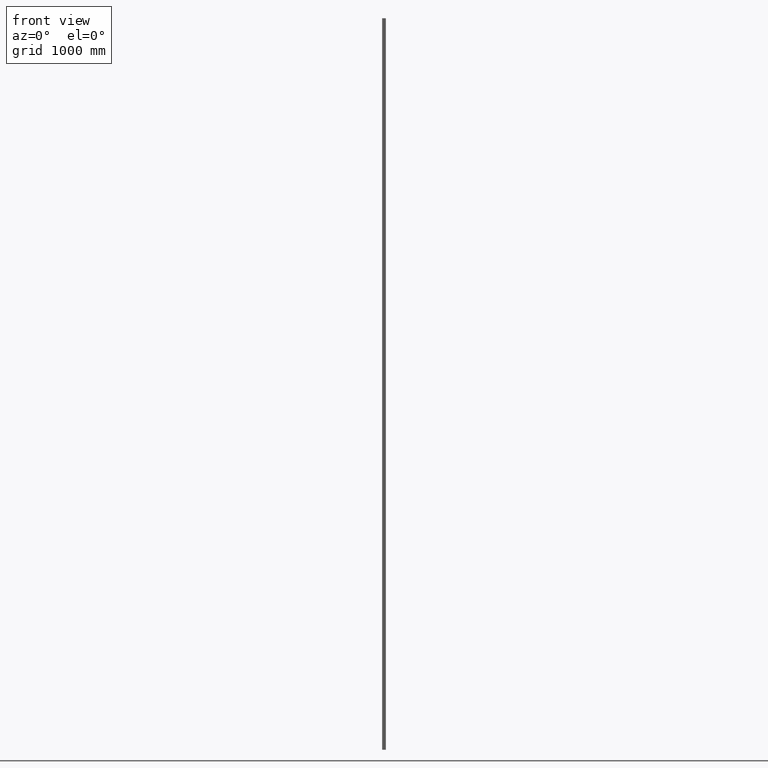
[diagram: clean part render]
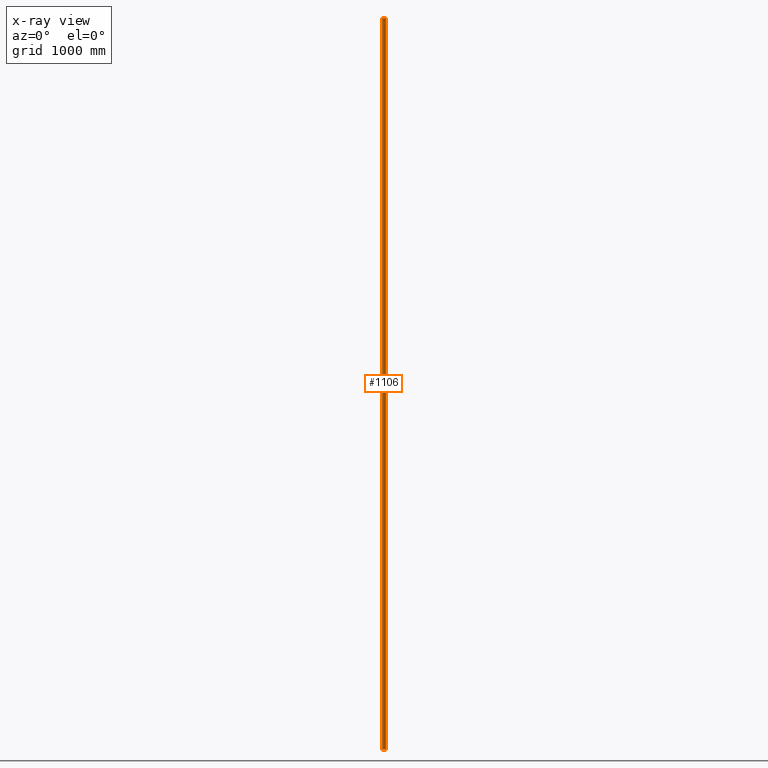
[diagram: x-ray — body ghosted, one internal face saturated and labeled with its STEP entity id]
A machine part, front view, then the same camera in x-ray: the body is ghosted and one INTERNAL B-rep face — a face not visible from any outside direction — is saturated and labeled: STEP entity #1106.
In plain terms, the highlighted cylindrical surface (edge-blend (fillet) strip) has radius 30.0015 mm, axis along (0, 0, 1).
Its self-contained STEP definition (entity closure, byte-faithful):
#35 = CIRCLE ( 'NONE', #1031, 30.00149993100000100 ) ;
#48 = FACE_OUTER_BOUND ( 'NONE', #801, .T. ) ;
#49 = CYLINDRICAL_SURFACE ( 'NONE', #670, 30.00149993100000100 ) ;
#146 = LINE ( 'NONE', #1003, #189 ) ;
#147 = VERTEX_POINT ( 'NONE', #1001 ) ;
#189 = VECTOR ( 'NONE', #1004, 1000.000000000000000 ) ;
#190 = LINE ( 'NONE', #1005, #191 ) ;
#191 = VECTOR ( 'NONE', #1006, 1000.000000000000000 ) ;
#215 = CIRCLE ( 'NONE', #1040, 30.00149993100000100 ) ;
#268 = EDGE_CURVE ( 'NONE', #1150, #1168, #146, .T. ) ;
#269 = EDGE_CURVE ( 'NONE', #147, #1164, #190, .T. ) ;
#281 = EDGE_CURVE ( 'NONE', #1150, #1164, #215, .T. ) ;
#346 = CARTESIAN_POINT ( 'NONE',  ( -15.00000000000000000, -15.00000003300000100, -6000.000000000000000 ) ) ;
#347 = DIRECTION ( 'NONE',  ( 0.0000000000000000000, 0.0000000000000000000, 1.000000000000000000 ) ) ;
#348 = DIRECTION ( 'NONE',  ( 1.000000000000000000, 0.0000000000000000000, 0.0000000000000000000 ) ) ;
#386 = CARTESIAN_POINT ( 'NONE',  ( -15.00000000000000000, -15.00000003300000100, 0.0000000000000000000 ) ) ;
#387 = DIRECTION ( 'NONE',  ( 0.0000000000000000000, 0.0000000000000000000, 1.000000000000000000 ) ) ;
#388 = DIRECTION ( 'NONE',  ( 1.000000000000000000, 0.0000000000000000000, 0.0000000000000000000 ) ) ;
#438 = CARTESIAN_POINT ( 'NONE',  ( -15.00000000000000000, 15.00149989799999900, -6000.000000000000000 ) ) ;
#442 = CARTESIAN_POINT ( 'NONE',  ( 15.00149993100000100, -15.00000001650000000, 0.0000000000000000000 ) ) ;
#604 = CARTESIAN_POINT ( 'NONE',  ( 15.00149993100000100, -15.00000001650000000, -6000.000000000000000 ) ) ;
#670 = AXIS2_PLACEMENT_3D ( 'NONE', #346, #347, #348 ) ;
#733 = CARTESIAN_POINT ( 'NONE',  ( -15.00000000000000000, -15.00000003300000100, -6000.000000000000000 ) ) ;
#734 = DIRECTION ( 'NONE',  ( 0.0000000000000000000, 0.0000000000000000000, 1.000000000000000000 ) ) ;
#735 = DIRECTION ( 'NONE',  ( 1.000000000000000000, 0.0000000000000000000, 0.0000000000000000000 ) ) ;
#801 = EDGE_LOOP ( 'NONE', ( #885, #886, #887, #888 ) ) ;
#885 = ORIENTED_EDGE ( 'NONE', *, *, #268, .F. ) ;
#886 = ORIENTED_EDGE ( 'NONE', *, *, #281, .T. ) ;
#887 = ORIENTED_EDGE ( 'NONE', *, *, #269, .F. ) ;
#888 = ORIENTED_EDGE ( 'NONE', *, *, #1089, .F. ) ;
#1001 = CARTESIAN_POINT ( 'NONE',  ( -15.00000000000000000, 15.00149989799999900, 2.220446049250313100E-013 ) ) ;
#1003 = CARTESIAN_POINT ( 'NONE',  ( 15.00149993100000300, -15.00000003300000100, -3000.000000000000000 ) ) ;
#1004 = DIRECTION ( 'NONE',  ( 0.0000000000000000000, 0.0000000000000000000, 1.000000000000000000 ) ) ;
#1005 = CARTESIAN_POINT ( 'NONE',  ( -15.00000000000000000, 15.00149989800000200, -3000.000000000000000 ) ) ;
#1006 = DIRECTION ( 'NONE',  ( -0.0000000000000000000, -0.0000000000000000000, -1.000000000000000000 ) ) ;
#1031 = AXIS2_PLACEMENT_3D ( 'NONE', #386, #387, #388 ) ;
#1040 = AXIS2_PLACEMENT_3D ( 'NONE', #733, #734, #735 ) ;
#1089 = EDGE_CURVE ( 'NONE', #1168, #147, #35, .T. ) ;
#1106 = ADVANCED_FACE ( 'NONE', ( #48 ), #49, .T. ) ;
#1150 = VERTEX_POINT ( 'NONE', #604 ) ;
#1164 = VERTEX_POINT ( 'NONE', #438 ) ;
#1168 = VERTEX_POINT ( 'NONE', #442 ) ;